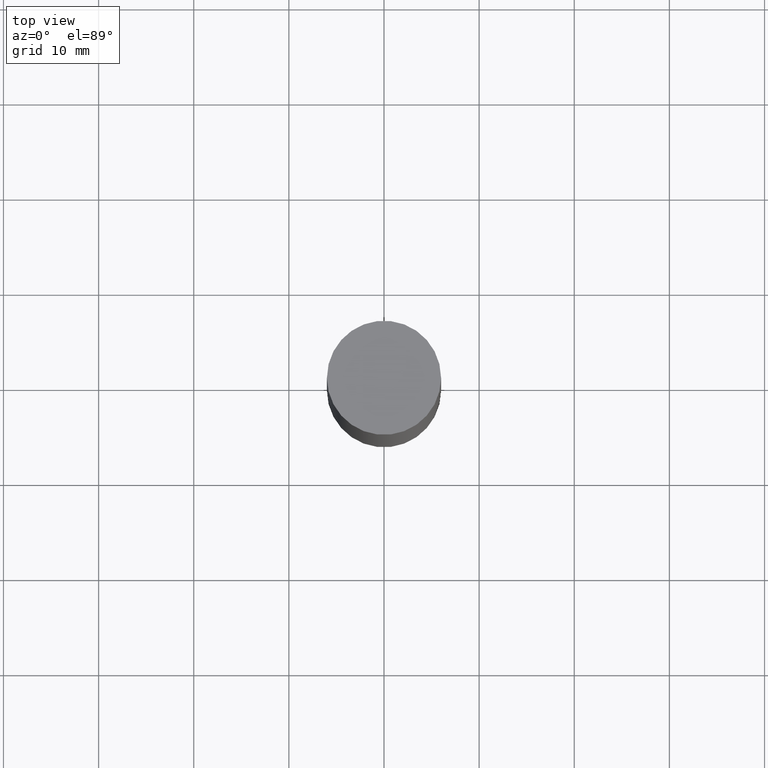
[diagram: clean part render]
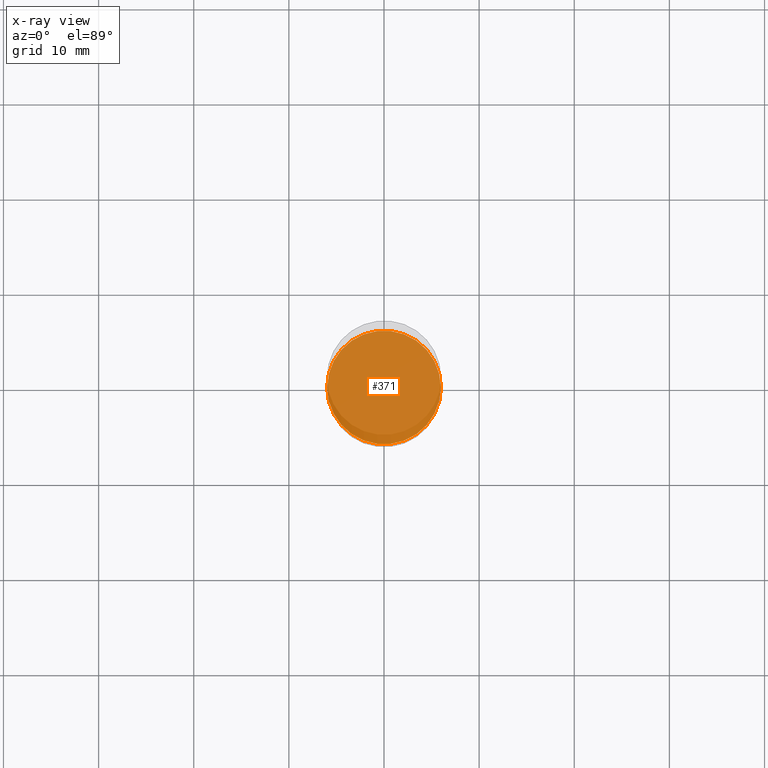
[diagram: x-ray — body ghosted, one internal face saturated and labeled with its STEP entity id]
A machine part, top view, then the same camera in x-ray: the body is ghosted and one INTERNAL B-rep face — a face not visible from any outside direction — is saturated and labeled: STEP entity #371.
In plain terms, the highlighted planar face has unit normal (-0, 0, 1).
Its self-contained STEP definition (entity closure, byte-faithful):
#12 = DIRECTION ( 'NONE',  ( 1.000000000000000000, -6.982962677686265922E-15, 4.876176775795935793E-29 ) ) ;
#77 = EDGE_CURVE ( 'NONE', #344, #558, #249, .T. ) ;
#106 = DIRECTION ( 'NONE',  ( -2.445468806185136597E-29, 3.491481338843145583E-15, 1.000000000000000000 ) ) ;
#108 = AXIS2_PLACEMENT_3D ( 'NONE', #430, #106, #161 ) ;
#111 = CARTESIAN_POINT ( 'NONE',  ( 5.680579489887452821E-29, -8.110362001998742346E-15, -2.322899999999999743 ) ) ;
#161 = DIRECTION ( 'NONE',  ( 1.000000000000000000, -6.982962677686268288E-15, 0.000000000000000000 ) ) ;
#221 = AXIS2_PLACEMENT_3D ( 'NONE', #229, #331, #281 ) ;
#229 = CARTESIAN_POINT ( 'NONE',  ( 5.680579489887452821E-29, -8.110362001998742346E-15, -2.322899999999999743 ) ) ;
#249 = CIRCLE ( 'NONE', #221, 0.2351999999999999924 ) ;
#252 = ORIENTED_EDGE ( 'NONE', *, *, #378, .F. ) ;
#281 = DIRECTION ( 'NONE',  ( 1.000000000000000000, -6.982962677686268288E-15, 0.000000000000000000 ) ) ;
#331 = DIRECTION ( 'NONE',  ( -2.445468806185136597E-29, 3.491481338843145583E-15, 1.000000000000000000 ) ) ;
#344 = VERTEX_POINT ( 'NONE', #524 ) ;
#366 = FACE_OUTER_BOUND ( 'NONE', #386, .T. ) ;
#371 = ADVANCED_FACE ( 'NONE', ( #366 ), #581, .F. ) ;
#378 = EDGE_CURVE ( 'NONE', #558, #344, #407, .T. ) ;
#385 = CARTESIAN_POINT ( 'NONE',  ( 0.2351999999999999924, -9.752754823790552857E-15, -2.322899999999999743 ) ) ;
#386 = EDGE_LOOP ( 'NONE', ( #252, #571 ) ) ;
#407 = CIRCLE ( 'NONE', #108, 0.2351999999999999924 ) ;
#430 = CARTESIAN_POINT ( 'NONE',  ( 5.680579489887452821E-29, -8.110362001998742346E-15, -2.322899999999999743 ) ) ;
#524 = CARTESIAN_POINT ( 'NONE',  ( -0.2351999999999999924, -6.433867033142764558E-15, -2.322899999999999743 ) ) ;
#527 = DIRECTION ( 'NONE',  ( -2.438088387897960049E-29, 3.491481338843145188E-15, 1.000000000000000000 ) ) ;
#531 = AXIS2_PLACEMENT_3D ( 'NONE', #111, #527, #12 ) ;
#558 = VERTEX_POINT ( 'NONE', #385 ) ;
#571 = ORIENTED_EDGE ( 'NONE', *, *, #77, .F. ) ;
#581 = PLANE ( 'NONE',  #531 ) ;